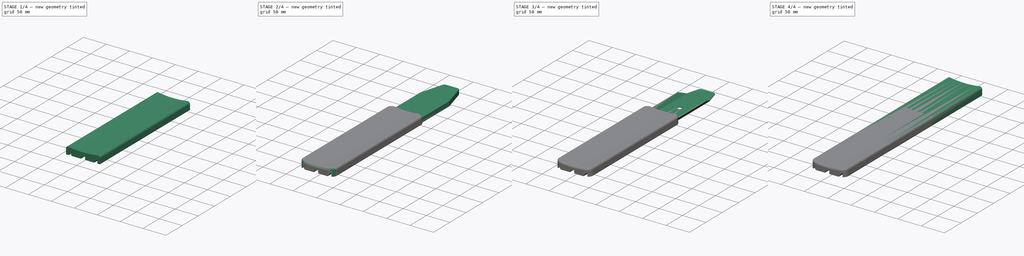
[diagram: build sequence overview — one tinted view per stage of 4, left to right]
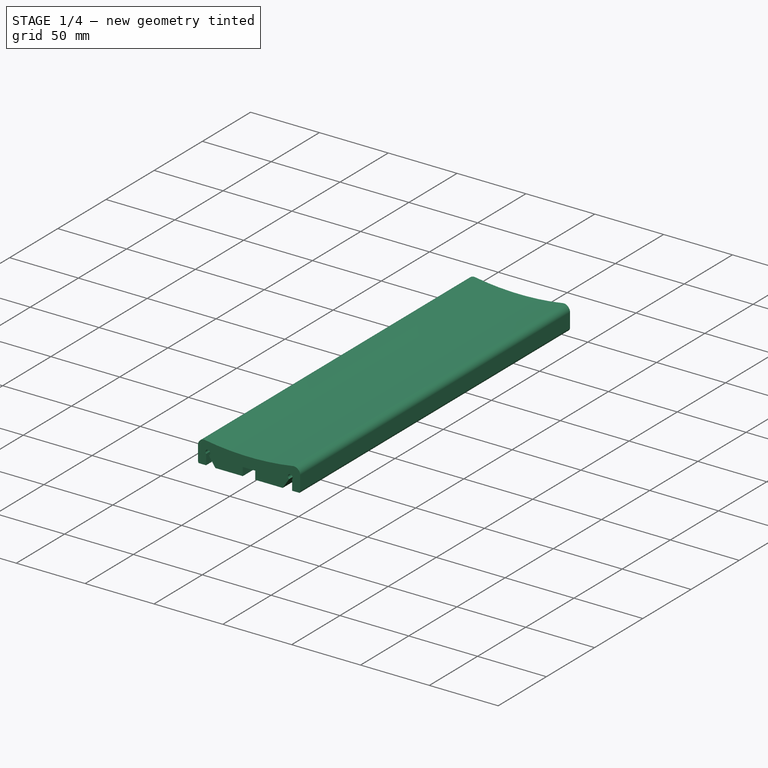
[diagram: stage 1 of 4 — iso view after this stage's code; geometry added in this stage tinted green]
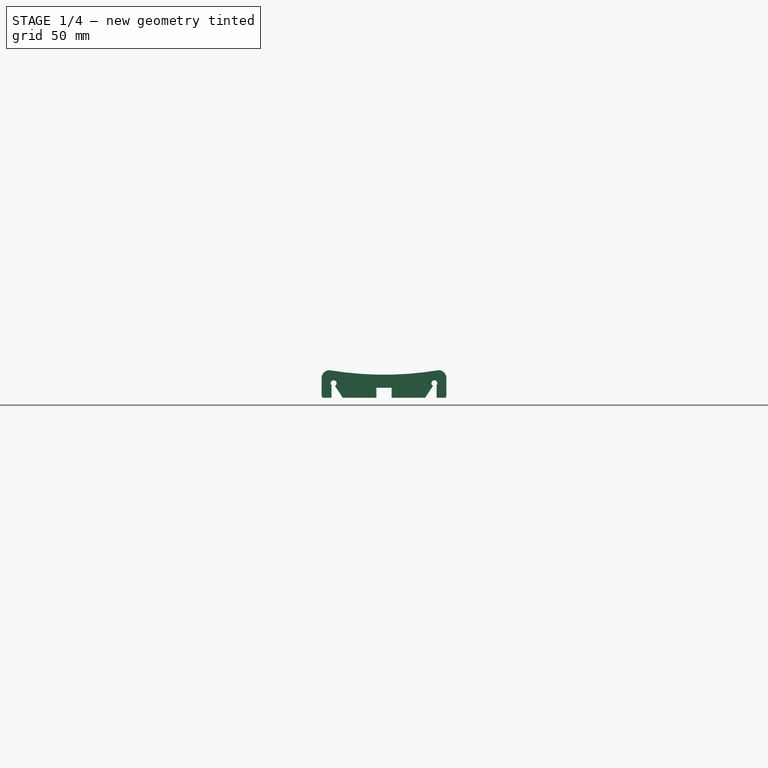
[diagram: stage 1 of 4 — front view after this stage's code; geometry added in this stage tinted green]
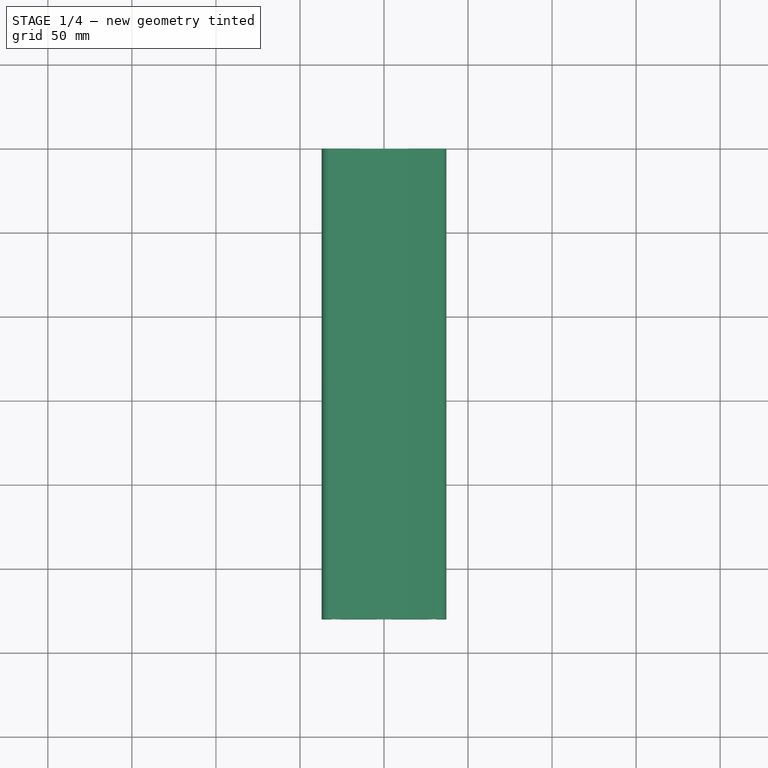
[diagram: stage 1 of 4 — top view after this stage's code; geometry added in this stage tinted green]
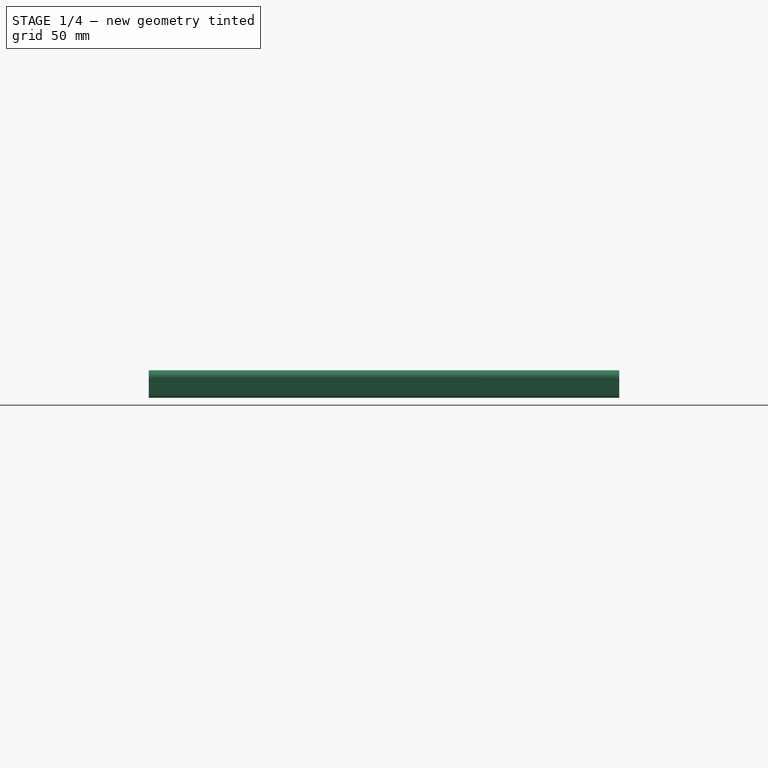
[diagram: stage 1 of 4 — right view after this stage's code; geometry added in this stage tinted green]
FCSTD DOCUMENT  (FreeCAD 1.0R39109 (Git))
Label: SoporteBrazoSilla
License: All rights reserved
LicenseURL: http://en.wikipedia.org/wiki/All_rights_reserved
objects: Sketcher::SketchObject×8, PartDesign::Pocket×5, PartDesign::Pad×3, PartDesign::Fillet×2, PartDesign::Body×2
note: 48 computed .brp shape members not serialized (recipe doc carries the construction recipe); baked Part::Feature solids carry a one-line shape summary decoded from their .brp

FEATURE [Sketcher::SketchObject] Sketch004
  ArcFitTolerance = 1e-06
  AttachmentSupport = -> [XZ_Plane001]
  FullyConstrained = false
  MakeInternals = false
  MapMode = 5
  Placement = pos=(0,0,0) rot=(1,0,0;1.5708rad)
  sketch-geometry (13):
    g0: LineSegment StartX=-37.1034 StartY=13.3415 StartZ=0 EndX=-37.1034 EndY=3.28318 EndZ=0
    g1: LineSegment StartX=-33.9009 StartY=0.0806826 StartZ=0 EndX=33.9009 EndY=0.0806826 EndZ=0
    g2: LineSegment StartX=37.1034 StartY=3.28318 StartZ=0 EndX=37.1034 EndY=13.3415 EndZ=0
    g3: LineSegment [constr] StartX=32.435 StartY=18.0099 StartZ=0 EndX=-32.435 EndY=18.0099 EndZ=0
    g4: ArcOfCircle CenterX=-32.435 CenterY=13.3415 CenterZ=0 NormalX=0 NormalY=0 NormalZ=1 AngleXU=0 Radius=4.66835 StartAngle=1.5708 EndAngle=3.14159
    g5: GeomPoint [constr] X=-37.1034 Y=18.0099 Z=0
    g6: ArcOfCircle CenterX=32.435 CenterY=13.3415 CenterZ=0 NormalX=0 NormalY=0 NormalZ=1 AngleXU=0 Radius=4.66835 StartAngle=0 EndAngle=1.5708
    g7: GeomPoint [constr] X=37.1034 Y=18.0099 Z=0
    g8: ArcOfCircle CenterX=2.86e-14 CenterY=213.177 CenterZ=0 NormalX=0 NormalY=0 NormalZ=1 AngleXU=0 Radius=197.844 StartAngle=4.5477 EndAngle=4.87707
    g9: ArcOfCircle CenterX=-33.9009 CenterY=3.28318 CenterZ=0 NormalX=0 NormalY=0 NormalZ=1 AngleXU=0 Radius=3.2025 StartAngle=3.14159 EndAngle=4.71239
    g10: GeomPoint [constr] X=-37.1034 Y=0.0806826 Z=0
    g11: ArcOfCircle CenterX=33.9009 CenterY=3.28318 CenterZ=0 NormalX=0 NormalY=0 NormalZ=1 AngleXU=0 Radius=3.2025 StartAngle=4.71239 EndAngle=6.28319
    g12: GeomPoint [constr] X=37.1034 Y=0.0806826 Z=0
  constraints (24):
    c: Vertical(g0)
    c: Vertical(g2)
    c: Horizontal(g1)
    c: Symmetric(g7,g5,g-2)
    c: PointOnObject(g5,g3)
    c: PointOnObject(g5,g0)
    c: Tangent(g3,g4) = -1.5708
    c: Tangent(g0,g4) = -1.5708
    c: PointOnObject(g7,g3)
    c: PointOnObject(g7,g2)
    c: Tangent(g3,g6) = -1.5708
    c: Tangent(g2,g6) = -1.5708
    c: Coincident(g8,g3)
    c: Coincident(g8,g3)
    c: PointOnObject(g10,g0)
    c: PointOnObject(g10,g1)
    c: Tangent(g0,g9) = -1.5708
    c: Tangent(g1,g9) = -1.5708
    c: PointOnObject(g12,g2)
    c: PointOnObject(g12,g1)
    c: Tangent(g2,g11) = -1.5708
    c: Tangent(g1,g11) = -1.5708
    c: Equal(g4,g6)
    c: Equal(g9,g11)
FEATURE [PartDesign::Pad] Pad001
  Direction = (0,-1,2e-16)
  Length = 280
  Length2 = 10
  Placement = pos=(0,0,0) rot=(1,0,0;1.5708rad)
  Profile = -> Sketch004
  ReferenceAxis = -> Sketch004 [N_Axis]
  Suppressed = false
  Type = 0
FEATURE [PartDesign::Body] Body
  AllowCompound = false
  Group = -> [Sketch,Pad,Sketch001,Pocket,Sketch002,Pocket001,Sketch003,Pocket002,Fillet,Sketch005,Pad002]
  Origin = -> Origin
  Tip = -> Pad002
FEATURE [Sketcher::SketchObject] Sketch006
  ArcFitTolerance = 1e-06
  AttachmentSupport = -> [Pad001]
  FullyConstrained = false
  MakeInternals = false
  MapMode = 5
  Placement = pos=(0,1.9e-15,0) rot=(-1,0,0;1.5708rad)
  sketch-geometry (22):
    g0: LineSegment [constr] StartX=-25.3468 StartY=0 StartZ=0 EndX=-31.2021 EndY=-9.06272 EndZ=0
    g1: LineSegment StartX=-31.2021 StartY=-9.06272 StartZ=0 EndX=-29.9586 EndY=-9.8081 EndZ=0
    g2: LineSegment StartX=-29.9586 StartY=-9.8081 StartZ=0 EndX=-24.521 EndY=-1.57526 EndZ=0
    g3: LineSegment StartX=24.4303 StartY=-1.57526 StartZ=0 EndX=29.9661 EndY=-9.92478 EndZ=0
    g4: LineSegment StartX=29.9661 StartY=-9.92478 StartZ=0 EndX=31.3044 EndY=-9.05979 EndZ=0
    g5: LineSegment [constr] StartX=31.3044 StartY=-9.05979 StartZ=0 EndX=25.3132 EndY=0.137232 EndZ=0
    g6: LineSegment [constr] StartX=25.3132 StartY=0.137232 StartZ=0 EndX=-25.176 EndY=0.137232 EndZ=0
    g7: LineSegment [constr] StartX=-25.176 StartY=0.137232 StartZ=0 EndX=-25.3468 EndY=0 EndZ=0
    g8: LineSegment StartX=-31.2021 StartY=-9.06272 StartZ=0 EndX=-31.2021 EndY=-1.57526 EndZ=0
    g9: LineSegment StartX=31.3044 StartY=-9.05979 StartZ=0 EndX=31.3044 EndY=-1.57526 EndZ=0
    g10: Circle CenterX=-29.9491 CenterY=-10.2714 CenterZ=0 NormalX=0 NormalY=0 NormalZ=1 AngleXU=0 Radius=1.74097
    g11: Circle CenterX=29.9491 CenterY=-10.2714 CenterZ=0 NormalX=0 NormalY=0 NormalZ=1 AngleXU=0 Radius=1.74097
    g12: LineSegment StartX=-4.54533 StartY=-1.57526 StartZ=0 EndX=-4.54533 EndY=-7.57526 EndZ=0
    g13: LineSegment StartX=4.54533 StartY=-1.57526 StartZ=0 EndX=4.54533 EndY=-7.57526 EndZ=0
    g14: LineSegment StartX=-24.521 StartY=-1.57526 StartZ=0 EndX=-4.54532 EndY=-1.57526 EndZ=0
    g15: LineSegment StartX=4.54533 StartY=-1.57526 StartZ=0 EndX=24.4303 EndY=-1.57526 EndZ=0
    g16: LineSegment StartX=4.54533 StartY=-7.57526 StartZ=0 EndX=-4.54533 EndY=-7.57526 EndZ=0
    g17: LineSegment StartX=-31.2021 StartY=-1.57526 StartZ=0 EndX=-41.1827 EndY=-1.57526 EndZ=0
    g18: LineSegment StartX=31.3044 StartY=-1.57526 StartZ=0 EndX=46.3939 EndY=-1.57526 EndZ=0
    g19: LineSegment StartX=-41.1827 StartY=-1.57526 StartZ=0 EndX=-41.1827 EndY=3.26711 EndZ=0
    g20: LineSegment StartX=-41.1827 StartY=3.26711 StartZ=0 EndX=46.3939 EndY=3.26711 EndZ=0
    g21: LineSegment StartX=46.3939 StartY=3.26711 StartZ=0 EndX=46.3939 EndY=-1.57526 EndZ=0
  constraints (32):
    c: PointOnObject(g0,g-1)
    c: Coincident(g0,g1)
    c: Coincident(g1,g2)
    c: Coincident(g3,g4)
    c: Coincident(g4,g5)
    c: Coincident(g5,g6)
    c: Horizontal(g6)
    c: Coincident(g6,g7)
    c: Coincident(g7,g0)
    c: Vertical(g8)
    c: Coincident(g8,g0)
    c: PointOnObject(g0,g10)
    c: Vertical(g12)
    c: Vertical(g13)
    c: Coincident(g14,g2)
    c: Coincident(g14,g12)
    c: Horizontal(g14)
    c: Coincident(g15,g13)
    c: Coincident(g15,g3)
    c: Horizontal(g15)
    c: Coincident(g16,g13)
    c: Coincident(g16,g12)
    c: Horizontal(g16)
    c: Coincident(g9,g18)
    c: Coincident(g8,g17)
    c: Coincident(g17,g19)
    c: Vertical(g19)
    c: Coincident(g19,g20)
    c: Horizontal(g20)
    c: Coincident(g20,g21)
    c: Coincident(g21,g18)
    c: Vertical(g21)
FEATURE [Sketcher::SketchObject] Sketch007
  ArcFitTolerance = 1e-06
  AttachmentSupport = -> [XY_Plane001]
  FullyConstrained = false
  MakeInternals = false
  MapMode = 5
  sketch-geometry (15):
    g0: GeomPoint [constr] X=-37.4715 Y=0 Z=0
    g1: LineSegment StartX=24.2634 StartY=0 StartZ=0 EndX=-24.2634 EndY=0 EndZ=0
    g2: LineSegment StartX=-37.1034 StartY=-12.84 StartZ=0 EndX=-37.1034 EndY=-267.16 EndZ=0
    g3: LineSegment StartX=-24.2634 StartY=-280 StartZ=0 EndX=24.2634 EndY=-280 EndZ=0
    g4: LineSegment StartX=37.1034 StartY=-267.16 StartZ=0 EndX=37.1034 EndY=-12.84 EndZ=0
    g5: ArcOfCircle CenterX=24.2634 CenterY=-12.84 CenterZ=0 NormalX=0 NormalY=0 NormalZ=1 AngleXU=0 Radius=12.84 StartAngle=0 EndAngle=1.5708
    g6: ArcOfCircle CenterX=-24.2634 CenterY=-12.84 CenterZ=0 NormalX=0 NormalY=0 NormalZ=1 AngleXU=0 Radius=12.84 StartAngle=1.5708 EndAngle=3.14159
    g7: ArcOfCircle CenterX=-24.2634 CenterY=-267.16 CenterZ=0 NormalX=0 NormalY=0 NormalZ=1 AngleXU=0 Radius=12.84 StartAngle=3.14159 EndAngle=4.71239
    g8: ArcOfCircle CenterX=24.2634 CenterY=-267.16 CenterZ=0 NormalX=0 NormalY=0 NormalZ=1 AngleXU=0 Radius=12.84 StartAngle=4.71239 EndAngle=6.28319
    g9: GeomPoint [constr] X=37.1034 Y=0 Z=0
    g10: GeomPoint [constr] X=-37.1034 Y=-280 Z=0
    g11: LineSegment StartX=71.6401 StartY=22.9689 StartZ=0 EndX=-64.5294 EndY=22.9689 EndZ=0
    g12: LineSegment StartX=-64.5294 StartY=22.9689 StartZ=0 EndX=-64.5294 EndY=-287.086 EndZ=0
    g13: LineSegment StartX=-64.5294 StartY=-287.086 StartZ=0 EndX=71.6401 EndY=-287.086 EndZ=0
    g14: LineSegment StartX=71.6401 StartY=-287.086 StartZ=0 EndX=71.6401 EndY=22.9689 EndZ=0
  constraints (33):
    c: PointOnObject(g0,g-1)
    c: Tangent(g1,g5) = -1.5708
    c: Tangent(g1,g6) = -1.5708
    c: Tangent(g2,g6) = -1.5708
    c: Tangent(g2,g7) = -1.5708
    c: Tangent(g3,g7) = -1.5708
    c: Tangent(g3,g8) = -1.5708
    c: Tangent(g4,g8) = -1.5708
    c: Tangent(g4,g5) = -1.5708
    c: Horizontal(g1)
    c: Horizontal(g3)
    c: Vertical(g2)
    c: Vertical(g4)
    c: Equal(g5,g6)
    c: Equal(g6,g7)
    c: Equal(g7,g8)
    c: PointOnObject(g9,g1)
    c: PointOnObject(g9,g4)
    c: PointOnObject(g10,g2)
    c: PointOnObject(g10,g3)
    c: Coincident(g11,g12)
    c: Coincident(g12,g13)
    c: Coincident(g13,g14)
    c: Coincident(g14,g11)
    c: Horizontal(g11)
    c: Horizontal(g13)
    c: Vertical(g12)
    c: Vertical(g14)
    c: Horizontal(g3,g-3)
    c: Horizontal(g1,g0)
    c: Vertical(g4,g-4)
    c: Radius(g5) = 12.84
    c: Vertical(g2,g-3)
FEATURE [PartDesign::Pocket] Pocket003
  BaseFeature = -> Pad001
  Direction = (0,-1,-2e-16)
  Length = 5
  Length2 = 5
  Placement = pos=(0,0,0) rot=(1,0,0;1.5708rad)
  Profile = -> Sketch006
  ReferenceAxis = -> Sketch006 [N_Axis]
  Suppressed = false
  Type = 1
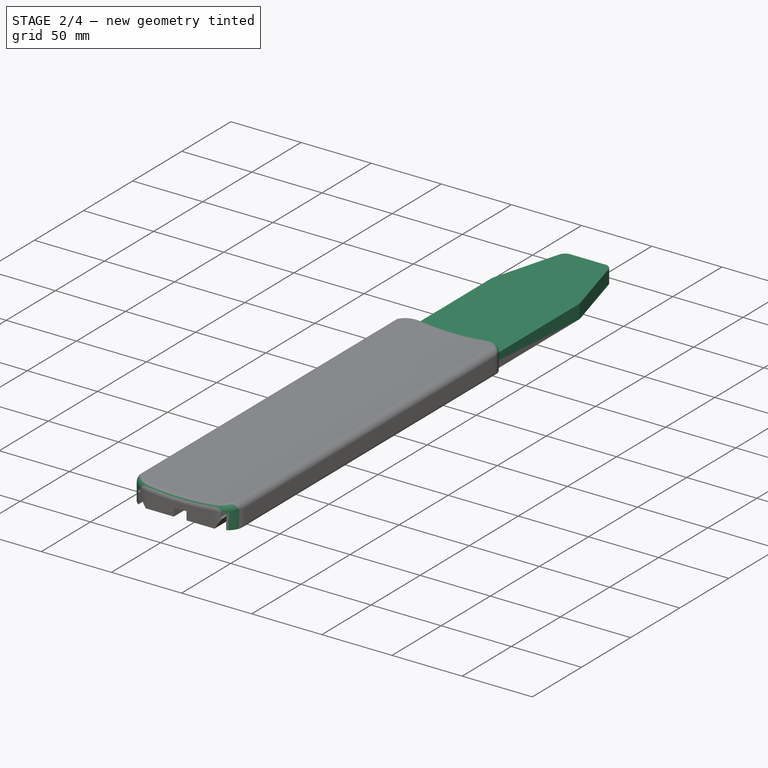
[diagram: stage 2 of 4 — iso view after this stage's code; geometry added in this stage tinted green]
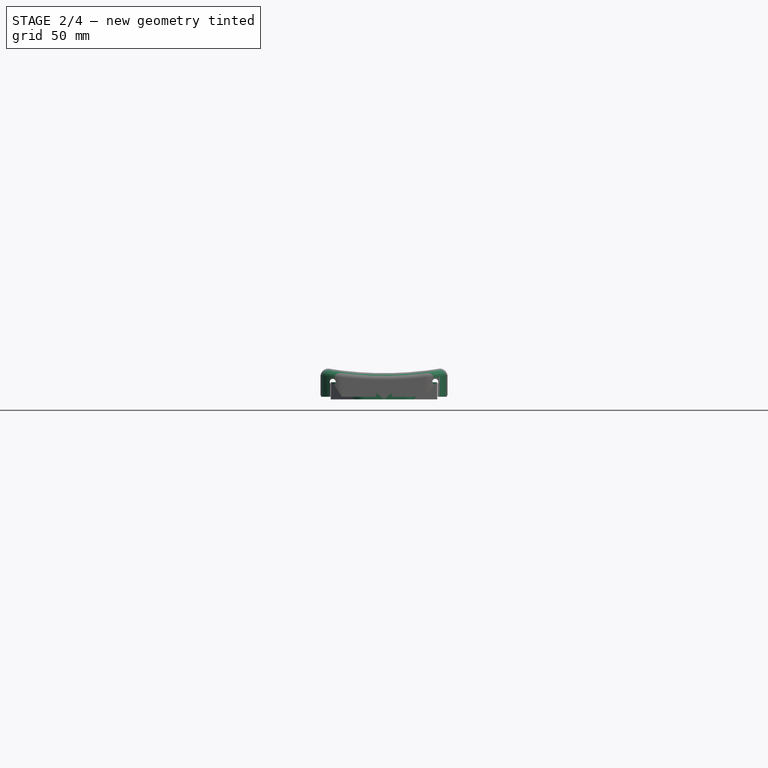
[diagram: stage 2 of 4 — front view after this stage's code; geometry added in this stage tinted green]
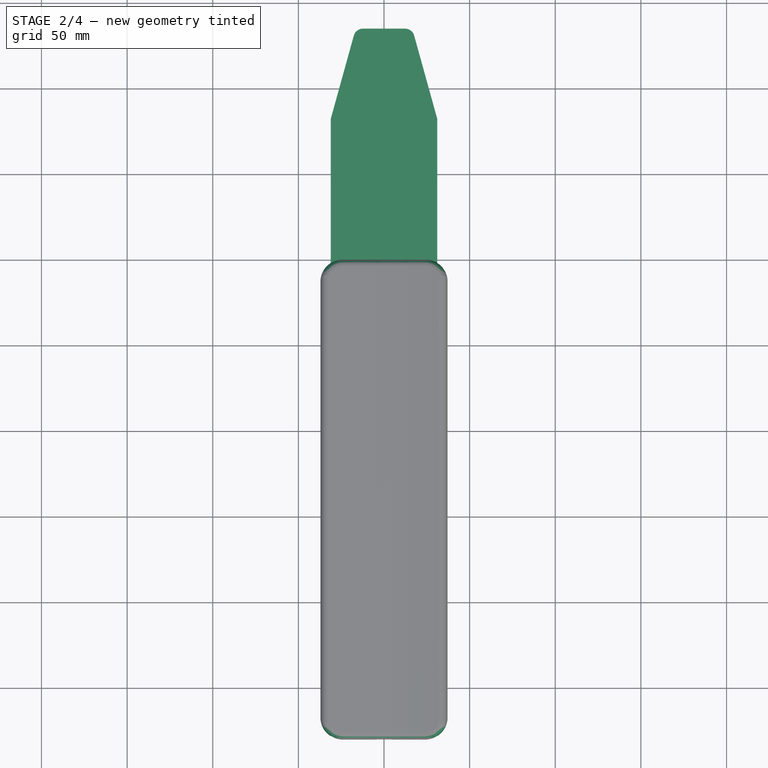
[diagram: stage 2 of 4 — top view after this stage's code; geometry added in this stage tinted green]
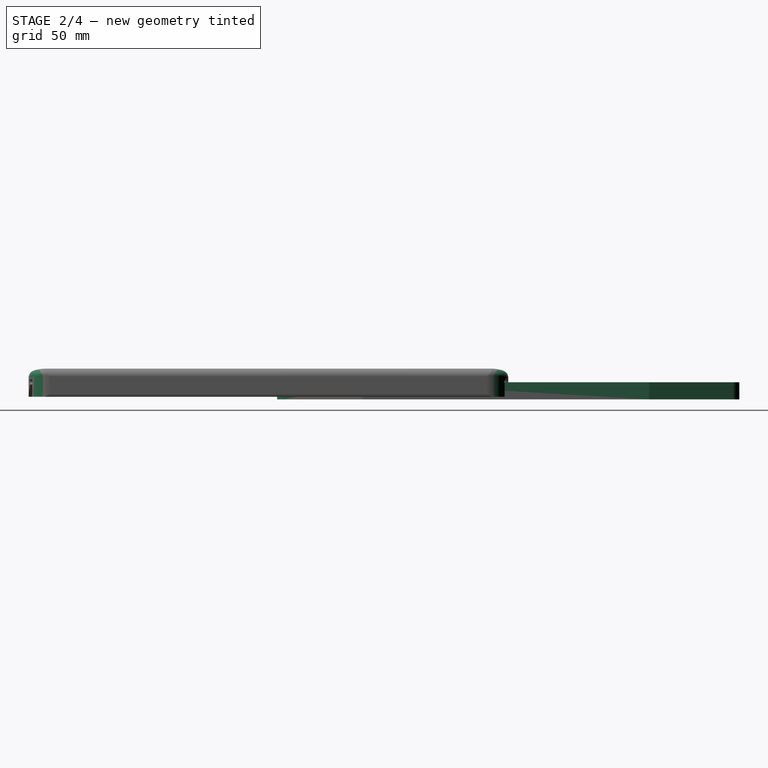
[diagram: stage 2 of 4 — right view after this stage's code; geometry added in this stage tinted green]
FEATURE [Sketcher::SketchObject] Sketch
  ArcFitTolerance = 1e-06
  AttachmentSupport = -> [XY_Plane]
  FullyConstrained = false
  MakeInternals = false
  MapMode = 5
  sketch-geometry (18):
    g0: LineSegment StartX=-31.1 StartY=82.25 StartZ=0 EndX=-31.1 EndY=-84.95 EndZ=0
    g1: LineSegment StartX=-31.1 StartY=-84.95 StartZ=0 EndX=-16.9692 EndY=-131.129 EndZ=0
    g2: LineSegment StartX=-31.1 StartY=82.25 StartZ=0 EndX=-17.6119 EndY=130.937 EndZ=0
    g3: LineSegment StartX=-12.3354 StartY=134.95 StartZ=0 EndX=0 EndY=134.95 EndZ=0
    g4: LineSegment StartX=-11.8041 StartY=-134.95 StartZ=0 EndX=0 EndY=-134.95 EndZ=0
    g5: ArcOfCircle CenterX=-12.3354 CenterY=129.475 CenterZ=0 NormalX=0 NormalY=0 NormalZ=1 AngleXU=0 Radius=5.47516 StartAngle=1.5708 EndAngle=2.87133
    g6: GeomPoint [constr] X=-16.5 Y=134.95 Z=0
    g7: ArcOfCircle CenterX=-11.8041 CenterY=-129.548 CenterZ=0 NormalX=0 NormalY=0 NormalZ=1 AngleXU=0 Radius=5.40159 StartAngle=3.43854 EndAngle=4.71239
    g8: GeomPoint [constr] X=-15.8 Y=-134.95 Z=0
    g9: LineSegment StartX=31.1 StartY=82.25 StartZ=0 EndX=31.1 EndY=-84.95 EndZ=0
    g10: LineSegment StartX=31.1 StartY=-84.95 StartZ=0 EndX=16.9692 EndY=-131.129 EndZ=0
    g11: LineSegment StartX=31.1 StartY=82.25 StartZ=0 EndX=17.6119 EndY=130.937 EndZ=0
    g12: LineSegment StartX=12.3354 StartY=134.95 StartZ=0 EndX=0 EndY=134.95 EndZ=0
    g13: LineSegment StartX=11.8041 StartY=-134.95 StartZ=0 EndX=0 EndY=-134.95 EndZ=0
    g14: ArcOfCircle CenterX=12.3354 CenterY=129.475 CenterZ=0 NormalX=0 NormalY=0 NormalZ=1 AngleXU=0 Radius=5.47516 StartAngle=0.270262 EndAngle=1.5708
    g15: GeomPoint [constr] X=16.5 Y=134.95 Z=0
    g16: ArcOfCircle CenterX=11.8041 CenterY=-129.548 CenterZ=0 NormalX=0 NormalY=0 NormalZ=1 AngleXU=0 Radius=5.40159 StartAngle=4.71239 EndAngle=5.98623
    g17: GeomPoint [constr] X=15.8 Y=-134.95 Z=0
  constraints (37):
    c: Vertical(g0)
    c: Coincident(g0,g1)
    c: Coincident(g0,g2)
    c: PointOnObject(g3,g-2)
    c: Horizontal(g3)
    c: Horizontal(g4)
    c: DistanceY(g0,g6) = 52.7
    c: Distance(g3,g6) = 16.5
    c: DistanceX(g0,g-1) = 31.1
    c: Distance(g4,g8) = 15.8
    c: Distance(g3,g4) = 269.9
    c: Symmetric(g3,g4,g-1)
    c: DistanceY(g8,g0) = 50
    c: PointOnObject(g6,g3)
    c: PointOnObject(g6,g2)
    c: Tangent(g3,g5) = 1.5708
    c: Tangent(g2,g5) = 1.5708
    c: PointOnObject(g8,g1)
    c: PointOnObject(g8,g4)
    c: Tangent(g1,g7) = -1.5708
    c: Tangent(g4,g7) = -1.5708
    c: Vertical(g9)
    c: Coincident(g9,g10)
    c: Coincident(g9,g11)
    c: Horizontal(g12)
    c: Horizontal(g13)
    c: Distance(g12,g15) = 16.5
    c: Distance(g13,g17) = 15.8
    c: Distance(g12,g13) = 269.9
    c: PointOnObject(g15,g12)
    c: PointOnObject(g15,g11)
    c: Tangent(g12,g14) = -1.5708
    c: Tangent(g11,g14) = -1.5708
    c: PointOnObject(g17,g10)
    c: PointOnObject(g17,g13)
    c: Tangent(g10,g16) = 1.5708
    c: Tangent(g13,g16) = 1.5708
FEATURE [PartDesign::Pad] Pad
  Direction = (0,0,1)
  Length = 10
  Length2 = 10
  Profile = -> Sketch
  ReferenceAxis = -> Sketch [N_Axis]
  Suppressed = false
  Type = 0
FEATURE [PartDesign::Pocket] Pocket004
  BaseFeature = -> Pocket003
  Direction = (0,0,-1)
  Length = 5
  Length2 = 5
  Placement = pos=(0,0,0) rot=(1,0,0;1.5708rad)
  Profile = -> Sketch007
  ReferenceAxis = -> Sketch007 [N_Axis]
  Reversed = true
  Suppressed = false
  Type = 1
FEATURE [PartDesign::Fillet] Fillet001
  Base = -> Pocket004 [Face5]
  BaseFeature = -> Pocket004
  Placement = pos=(0,0,0) rot=(1,0,0;1.5708rad)
  Radius = 4
  SupportTransform = false
  Suppressed = false
  UseAllEdges = false
FEATURE [PartDesign::Body] Body001
  AllowCompound = false
  Group = -> [Sketch004,Pad001,Sketch006,Sketch007,Pocket003,Pocket004,Fillet001]
  Origin = -> Origin001
  Placement = pos=(0,140,0) rot=(0,0,1;0rad)
  Tip = -> Fillet001
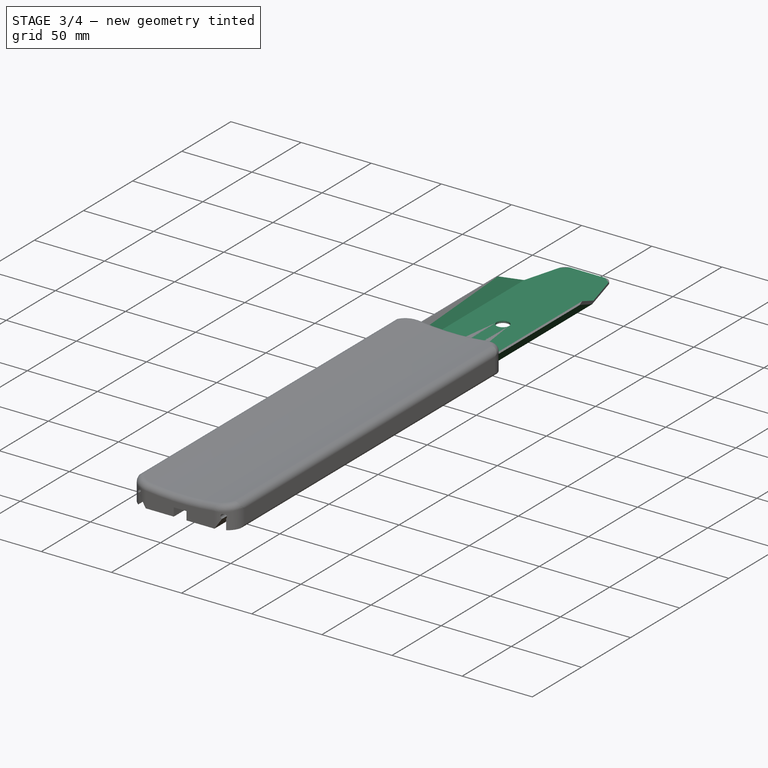
[diagram: stage 3 of 4 — iso view after this stage's code; geometry added in this stage tinted green]
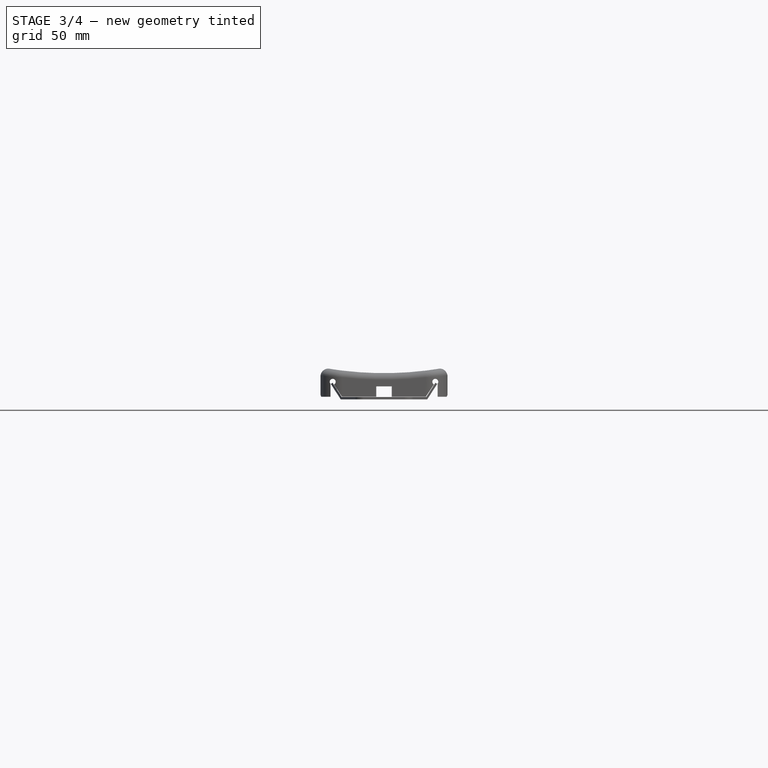
[diagram: stage 3 of 4 — front view after this stage's code; geometry added in this stage tinted green]
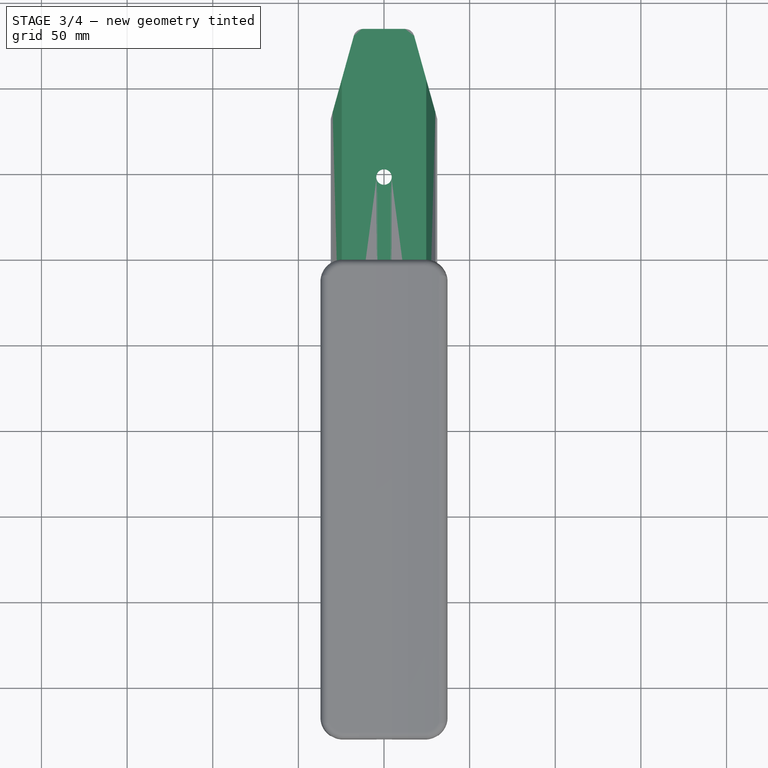
[diagram: stage 3 of 4 — top view after this stage's code; geometry added in this stage tinted green]
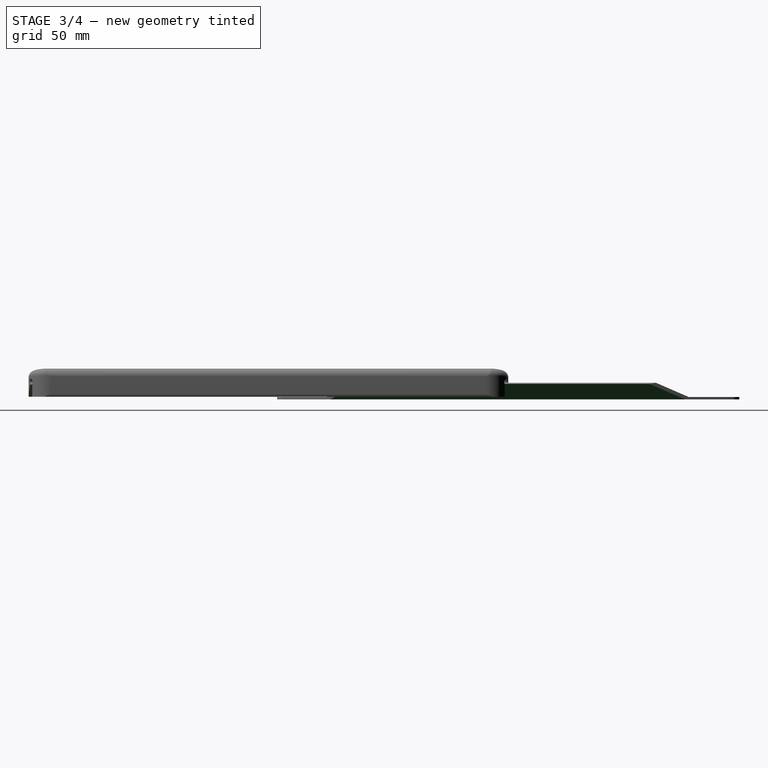
[diagram: stage 3 of 4 — right view after this stage's code; geometry added in this stage tinted green]
FEATURE [Sketcher::SketchObject] Sketch001
  ArcFitTolerance = 1e-06
  AttachmentSupport = -> [Pad]
  FullyConstrained = true
  MakeInternals = false
  MapMode = 5
  Placement = pos=(0,0,10) rot=(0,0,1;0rad)
  sketch-geometry (4):
    g0: LineSegment StartX=-24.7 StartY=140 StartZ=0 EndX=-24.7 EndY=-140 EndZ=0
    g1: LineSegment StartX=-24.7 StartY=-140 StartZ=0 EndX=24.7 EndY=-140 EndZ=0
    g2: LineSegment StartX=24.7 StartY=-140 StartZ=0 EndX=24.7 EndY=140 EndZ=0
    g3: LineSegment StartX=24.7 StartY=140 StartZ=0 EndX=-24.7 EndY=140 EndZ=0
  constraints (10):
    c: Coincident(g0,g1)
    c: Coincident(g1,g2)
    c: Coincident(g2,g3)
    c: Coincident(g3,g0)
    c: Vertical(g0)
    c: Horizontal(g1)
    c: Distance(g0,g2) = 49.4
    c: Symmetric(g2,g0,g-2)
    c: Symmetric(g2,g1,g-1)
    c: Distance(g2) = 280
FEATURE [PartDesign::Pocket] Pocket
  BaseFeature = -> Pad
  Direction = (0,0,-1)
  Length = 8.6
  Length2 = 5
  Profile = -> Sketch001
  ReferenceAxis = -> Sketch001 [N_Axis]
  Suppressed = false
  Type = 0
FEATURE [Sketcher::SketchObject] Sketch002
  ArcFitTolerance = 1e-06
  AttachmentSupport = -> [Pocket]
  ExternalGeometry = -> [Pocket]
  FullyConstrained = false
  MakeInternals = false
  MapMode = 5
  Placement = pos=(0,-134.95,0) rot=(1,0,0;1.5708rad)
  sketch-geometry (15):
    g0: LineSegment [constr] StartX=-30 StartY=9.71354 StartZ=0 EndX=0 EndY=9.71354 EndZ=0
    g1: LineSegment StartX=-30 StartY=9.71354 StartZ=0 EndX=-24.7 EndY=1.4 EndZ=0
    g2: LineSegment StartX=-31.0685 StartY=9.03874 StartZ=0 EndX=-25.2274 EndY=-3e-16 EndZ=0
    g3: LineSegment StartX=-30 StartY=9.71354 StartZ=0 EndX=-31.0685 EndY=9.03874 EndZ=0
    g4: LineSegment StartX=-25.2274 StartY=-3e-16 StartZ=0 EndX=-33.9004 EndY=0 EndZ=0
    g5: LineSegment StartX=-33.9004 StartY=0 StartZ=0 EndX=-33.9004 EndY=13.8826 EndZ=0
    g6: LineSegment StartX=-33.9004 StartY=13.8826 StartZ=0 EndX=-19.3205 EndY=11.6228 EndZ=0
    g7: LineSegment StartX=-19.3205 StartY=11.6228 StartZ=0 EndX=-24.7 EndY=1.4 EndZ=0
    g8: LineSegment StartX=30 StartY=9.71354 StartZ=0 EndX=24.7 EndY=1.4 EndZ=0
    g9: LineSegment StartX=31.0685 StartY=9.03874 StartZ=0 EndX=25.2274 EndY=-3e-16 EndZ=0
    g10: LineSegment StartX=30 StartY=9.71354 StartZ=0 EndX=31.0685 EndY=9.03874 EndZ=0
    g11: LineSegment StartX=25.2274 StartY=-3e-16 StartZ=0 EndX=33.9004 EndY=0 EndZ=0
    g12: LineSegment StartX=33.9004 StartY=0 StartZ=0 EndX=33.9004 EndY=13.8826 EndZ=0
    g13: LineSegment StartX=33.9004 StartY=13.8826 StartZ=0 EndX=19.3205 EndY=11.6228 EndZ=0
    g14: LineSegment StartX=19.3205 StartY=11.6228 StartZ=0 EndX=24.7 EndY=1.4 EndZ=0
  constraints (22):
    c: Distance(g0) = 30
    c: Horizontal(g0)
    c: PointOnObject(g0,g-2)
    c: Coincident(g1,g0)
    c: Coincident(g1,g-3)
    c: PointOnObject(g2,g-1)
    c: Coincident(g3,g0)
    c: Coincident(g3,g2)
    c: Coincident(g4,g2)
    c: PointOnObject(g4,g-1)
    c: Coincident(g4,g5)
    c: Vertical(g5)
    c: Coincident(g5,g6)
    c: Coincident(g6,g7)
    c: Coincident(g7,g1)
    c: Coincident(g10,g9)
    c: Coincident(g11,g9)
    c: Coincident(g11,g12)
    c: Vertical(g12)
    c: Coincident(g12,g13)
    c: Coincident(g13,g14)
    c: Coincident(g14,g8)
FEATURE [PartDesign::Pocket] Pocket001
  BaseFeature = -> Pocket
  Direction = (0,1,-2e-16)
  Length = 5
  Length2 = 5
  Profile = -> Sketch002
  ReferenceAxis = -> Sketch002 [N_Axis]
  Suppressed = false
  Type = 1
FEATURE [Sketcher::SketchObject] Sketch003
  ArcFitTolerance = 1e-06
  AttachmentSupport = -> [Pocket001]
  ExternalGeometry = -> [Pocket001]
  FullyConstrained = true
  MakeInternals = false
  MapMode = 5
  Placement = pos=(0,0,1.4) rot=(0,0,1;0rad)
  sketch-geometry (6):
    g0: LineSegment [constr] StartX=0 StartY=134.95 StartZ=0 EndX=0 EndY=52.45 EndZ=0
    g1: Circle [constr] CenterX=0 CenterY=48.45 CenterZ=0 NormalX=0 NormalY=0 NormalZ=1 AngleXU=0 Radius=4
    g2: Circle CenterX=0 CenterY=48.45 CenterZ=0 NormalX=0 NormalY=0 NormalZ=1 AngleXU=0 Radius=4.5
    g3: LineSegment [constr] StartX=0 StartY=-134.95 StartZ=0 EndX=0 EndY=-63.25 EndZ=0
    g4: Circle [constr] CenterX=0 CenterY=-59.25 CenterZ=0 NormalX=0 NormalY=0 NormalZ=1 AngleXU=0 Radius=4
    g5: Circle CenterX=0 CenterY=-59.25 CenterZ=0 NormalX=0 NormalY=0 NormalZ=1 AngleXU=0 Radius=4.5
  constraints (16):
    c: Distance(g0) = 82.5
    c: Coincident(g0,g-3)
    c: PointOnObject(g0,g-2)
    c: PointOnObject(g0,g1)
    c: PointOnObject(g1,g-2)
    c: Diameter(g1) = 8
    c: Diameter(g2) = 9
    c: Coincident(g2,g1)
    c: Distance(g3) = 71.7
    c: Coincident(g3,g-4)
    c: PointOnObject(g3,g-2)
    c: PointOnObject(g3,g4)
    c: PointOnObject(g4,g-2)
    c: Diameter(g4) = 8
    c: Diameter(g5) = 9
    c: Coincident(g5,g4)
FEATURE [PartDesign::Pocket] Pocket002
  BaseFeature = -> Pocket001
  Direction = (0,0,-1)
  Length = 5
  Length2 = 5
  Profile = -> Sketch003
  ReferenceAxis = -> Sketch003 [N_Axis]
  Suppressed = false
  Type = 0
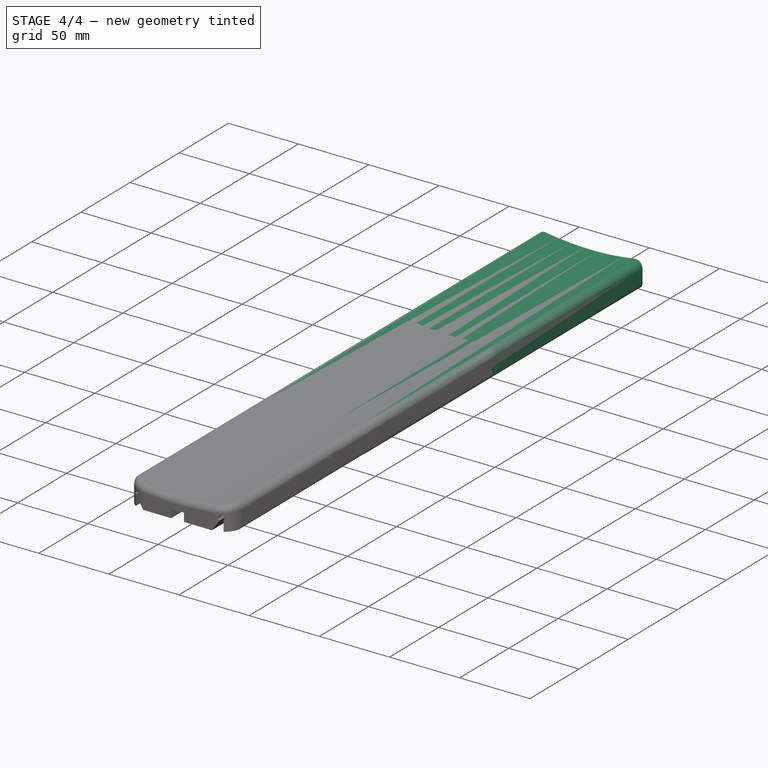
[diagram: stage 4 of 4 — iso view after this stage's code; geometry added in this stage tinted green]
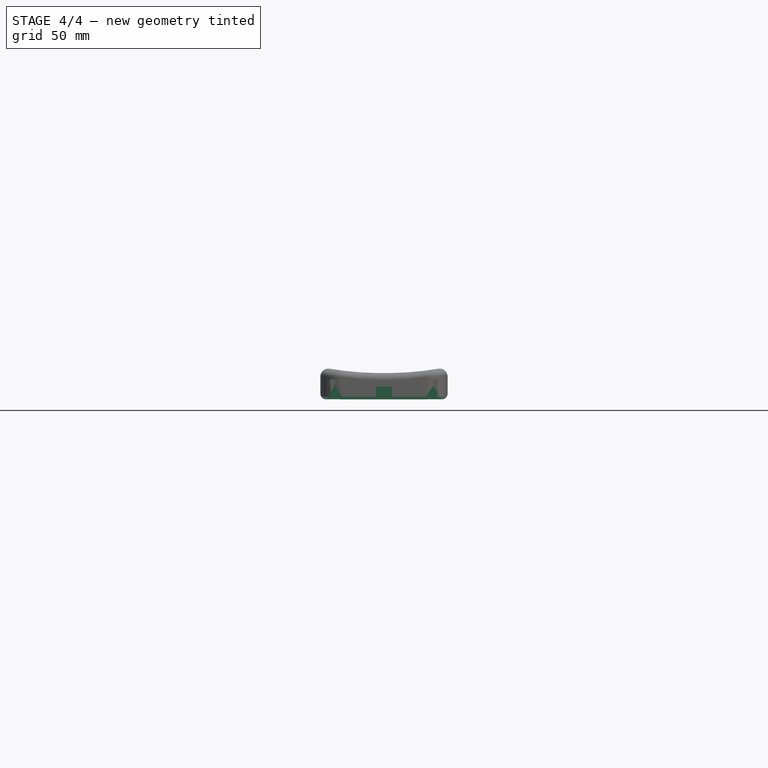
[diagram: stage 4 of 4 — front view after this stage's code; geometry added in this stage tinted green]
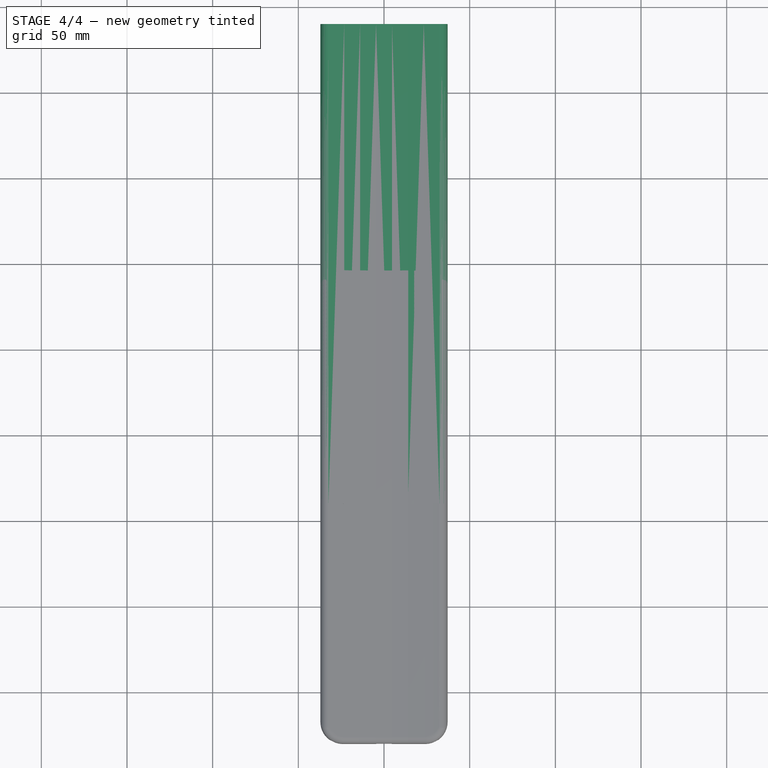
[diagram: stage 4 of 4 — top view after this stage's code; geometry added in this stage tinted green]
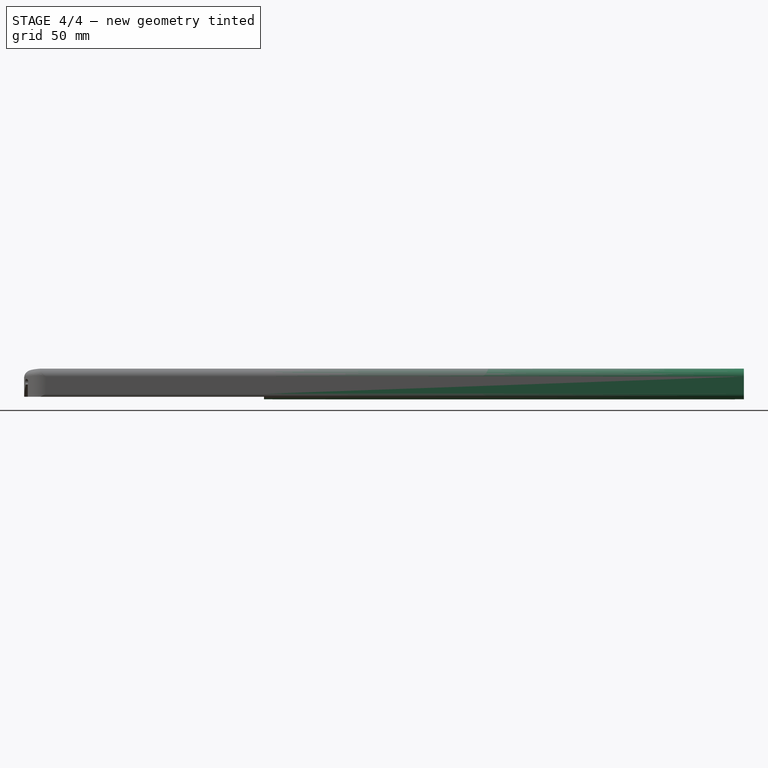
[diagram: stage 4 of 4 — right view after this stage's code; geometry added in this stage tinted green]
FEATURE [PartDesign::Fillet] Fillet
  Base = -> Pocket002 [Edge34,Edge24]
  BaseFeature = -> Pocket002
  Radius = 2
  SupportTransform = false
  Suppressed = false
  UseAllEdges = false
FEATURE [Sketcher::SketchObject] Sketch005
  ArcFitTolerance = 1e-06
  AttachmentSupport = -> [XZ_Plane]
  FullyConstrained = false
  MakeInternals = false
  MapMode = 5
  Placement = pos=(0,0,0) rot=(1,0,0;1.5708rad)
  sketch-geometry (13):
    g0: LineSegment StartX=-37.1034 StartY=13.3415 StartZ=0 EndX=-37.1034 EndY=3.28318 EndZ=0
    g1: LineSegment StartX=-33.9009 StartY=0.0806826 StartZ=0 EndX=33.9009 EndY=0.0806826 EndZ=0
    g2: LineSegment StartX=37.1034 StartY=3.28318 StartZ=0 EndX=37.1034 EndY=13.3415 EndZ=0
    g3: LineSegment [constr] StartX=32.435 StartY=18.0099 StartZ=0 EndX=-32.435 EndY=18.0099 EndZ=0
    g4: ArcOfCircle CenterX=-32.435 CenterY=13.3415 CenterZ=0 NormalX=0 NormalY=0 NormalZ=1 AngleXU=0 Radius=4.66835 StartAngle=1.5708 EndAngle=3.14159
    g5: GeomPoint [constr] X=-37.1034 Y=18.0099 Z=0
    g6: ArcOfCircle CenterX=32.435 CenterY=13.3415 CenterZ=0 NormalX=0 NormalY=0 NormalZ=1 AngleXU=0 Radius=4.66835 StartAngle=0 EndAngle=1.5708
    g7: GeomPoint [constr] X=37.1034 Y=18.0099 Z=0
    g8: ArcOfCircle CenterX=2.86e-14 CenterY=213.177 CenterZ=0 NormalX=0 NormalY=0 NormalZ=1 AngleXU=0 Radius=197.844 StartAngle=4.5477 EndAngle=4.87707
    g9: ArcOfCircle CenterX=-33.9009 CenterY=3.28318 CenterZ=0 NormalX=0 NormalY=0 NormalZ=1 AngleXU=0 Radius=3.2025 StartAngle=3.14159 EndAngle=4.71239
    g10: GeomPoint [constr] X=-37.1034 Y=0.0806826 Z=0
    g11: ArcOfCircle CenterX=33.9009 CenterY=3.28318 CenterZ=0 NormalX=0 NormalY=0 NormalZ=1 AngleXU=0 Radius=3.2025 StartAngle=4.71239 EndAngle=6.28319
    g12: GeomPoint [constr] X=37.1034 Y=0.0806826 Z=0
  constraints (24):
    c: Vertical(g0)
    c: Vertical(g2)
    c: Horizontal(g1)
    c: Symmetric(g7,g5,g-2)
    c: PointOnObject(g5,g3)
    c: PointOnObject(g5,g0)
    c: Tangent(g3,g4) = -1.5708
    c: Tangent(g0,g4) = -1.5708
    c: PointOnObject(g7,g3)
    c: PointOnObject(g7,g2)
    c: Tangent(g3,g6) = -1.5708
    c: Tangent(g2,g6) = -1.5708
    c: Coincident(g8,g3)
    c: Coincident(g8,g3)
    c: PointOnObject(g10,g0)
    c: PointOnObject(g10,g1)
    c: Tangent(g0,g9) = -1.5708
    c: Tangent(g1,g9) = -1.5708
    c: PointOnObject(g12,g2)
    c: PointOnObject(g12,g1)
    c: Tangent(g2,g11) = -1.5708
    c: Tangent(g1,g11) = -1.5708
    c: Equal(g4,g6)
    c: Equal(g9,g11)
FEATURE [PartDesign::Pad] Pad002
  BaseFeature = -> Fillet
  Direction = (0,-1,2e-16)
  Length = 140
  Length2 = 140
  Profile = -> Sketch005
  ReferenceAxis = -> Sketch005 [N_Axis]
  Suppressed = false
  Type = 4
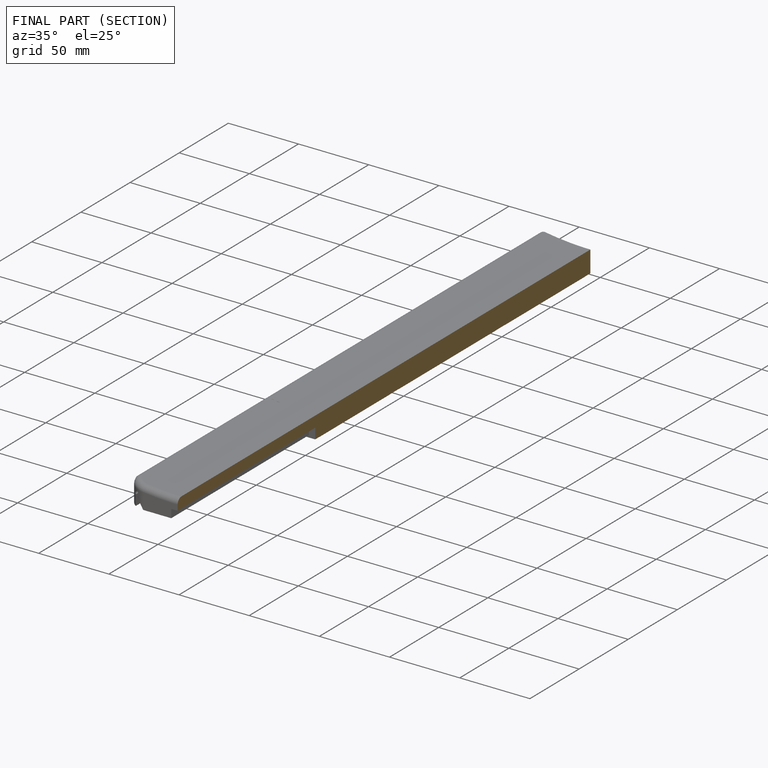
[diagram: finished part — half-section view (interior)]
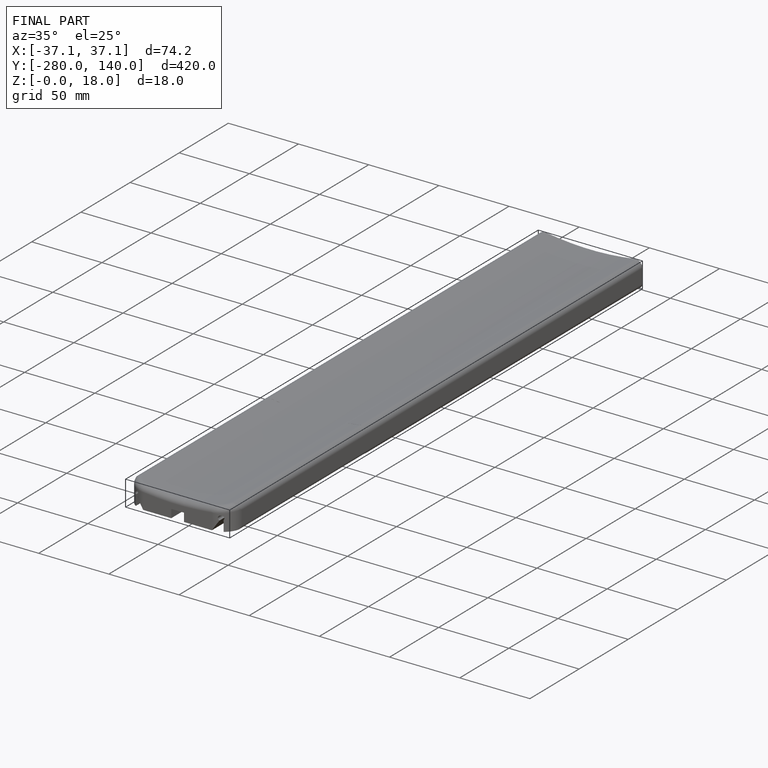
[diagram: finished part — iso view with bounding-box wireframe]
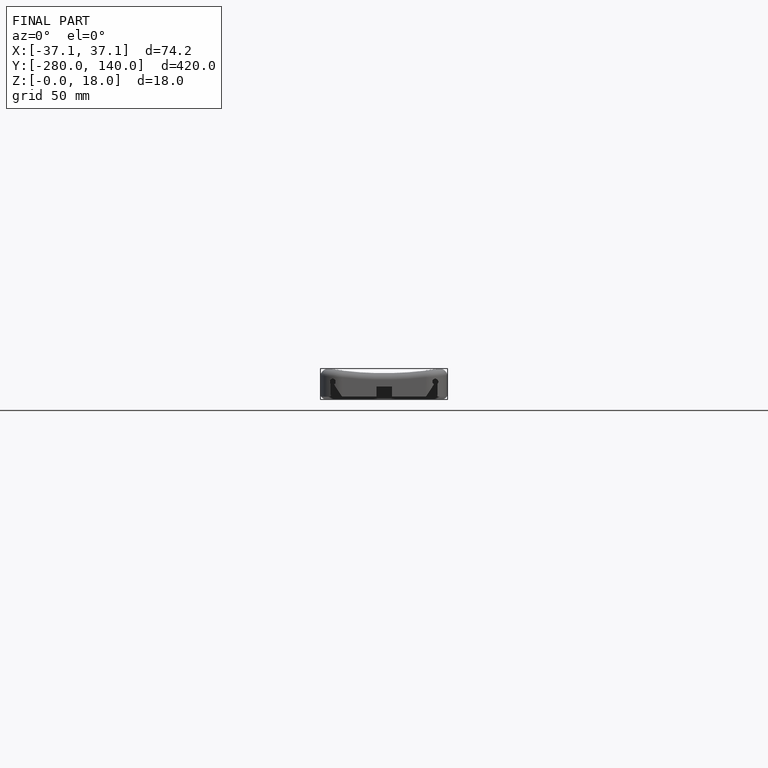
[diagram: finished part — front view with bounding-box wireframe]
